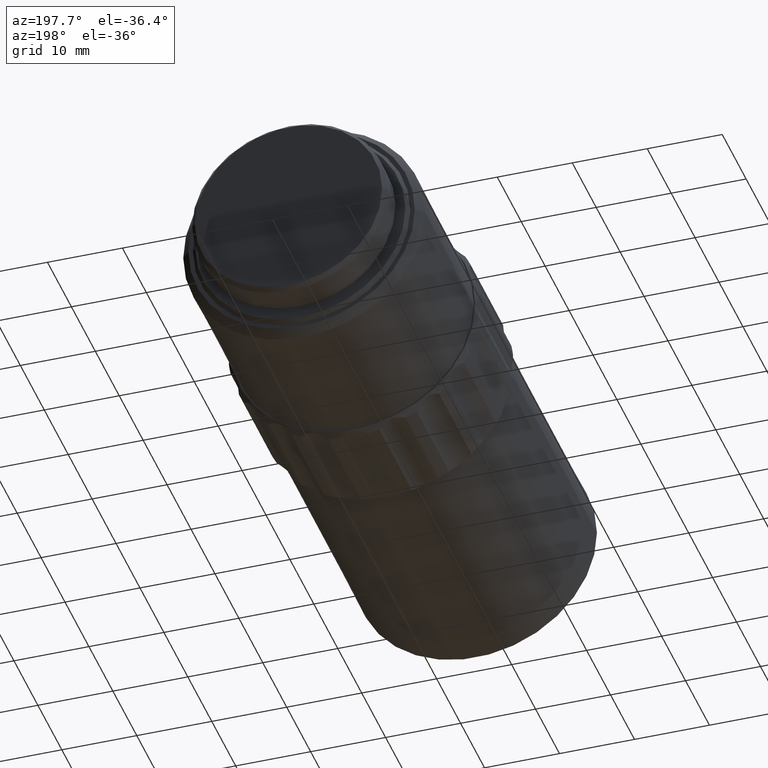
[diagram: clean part render]
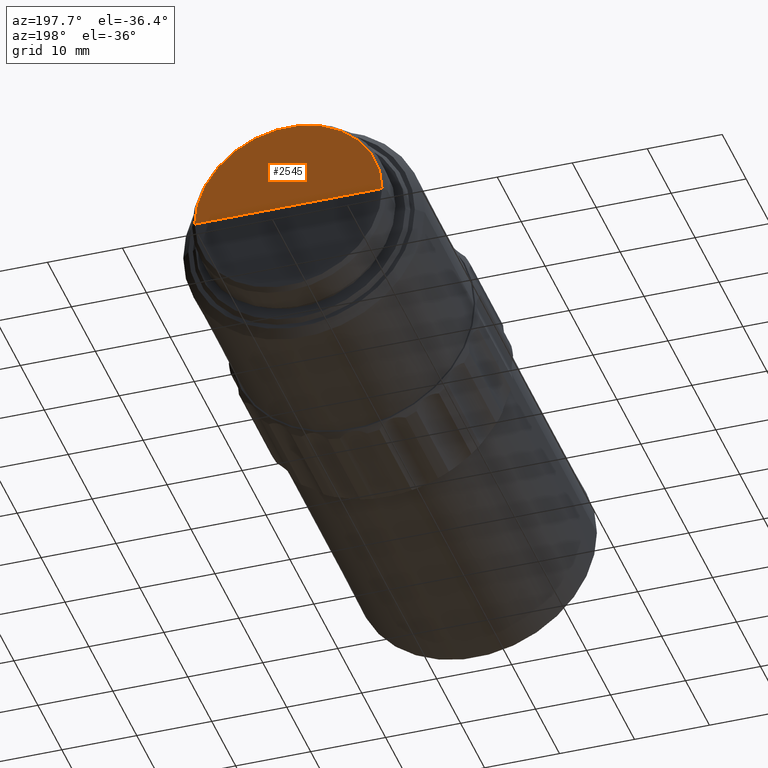
[diagram: same view with one face highlighted and labeled with its STEP entity id]
A machine part, auxiliary view. The second image highlights one B-rep face of the part: STEP entity #2545.
In plain terms, the highlighted conical surface has half-angle 89.999 deg.
Its self-contained STEP definition (entity closure, byte-faithful):
#121 = VECTOR ( 'NONE', #2155, 1000.000000000000114 ) ;
#197 = LINE ( 'NONE', #1986, #2025 ) ;
#366 = CARTESIAN_POINT ( 'NONE',  ( 1332.183016231088004, 1028.626203191520972, -1.347616800400172774E-09 ) ) ;
#428 = DIRECTION ( 'NONE',  ( 9.536353044915926586E-06, 0.9999999999545290397, -0.000000000000000000 ) ) ;
#647 = LINE ( 'NONE', #1276, #121 ) ;
#844 = FACE_OUTER_BOUND ( 'NONE', #2403, .T. ) ;
#858 = DIRECTION ( 'NONE',  ( -1.000000000000000000, -6.707255634415005413E-14, 1.224646799091667269E-16 ) ) ;
#886 = DIRECTION ( 'NONE',  ( -0.9999999999545289286, 9.536353041007332015E-06, 0.000000000000000000 ) ) ;
#912 = EDGE_CURVE ( 'NONE', #2409, #1953, #2767, .T. ) ;
#1085 = VERTEX_POINT ( 'NONE', #2235 ) ;
#1088 = DIRECTION ( 'NONE',  ( -9.536353044915926586E-06, -0.9999999999545290397, 0.000000000000000000 ) ) ;
#1110 = CARTESIAN_POINT ( 'NONE',  ( 1357.183016228813585, 1028.625964782695064, -1.347618331208670883E-09 ) ) ;
#1135 = ORIENTED_EDGE ( 'NONE', *, *, #1959, .T. ) ;
#1276 = CARTESIAN_POINT ( 'NONE',  ( 1357.183016223690402, 1028.625964782695064, -1.347618331208670883E-09 ) ) ;
#1292 = CARTESIAN_POINT ( 'NONE',  ( 1344.683016224827497, 1028.626083987107904, -1.347618331208670883E-09 ) ) ;
#1300 = AXIS2_PLACEMENT_3D ( 'NONE', #2580, #428, #886 ) ;
#1410 = EDGE_CURVE ( 'NONE', #1085, #1953, #647, .T. ) ;
#1456 = CONICAL_SURFACE ( 'NONE', #1879, 12.49999999943125317, 1.570786790441784486 ) ;
#1879 = AXIS2_PLACEMENT_3D ( 'NONE', #1292, #1088, #2585 ) ;
#1909 = ORIENTED_EDGE ( 'NONE', *, *, #1410, .F. ) ;
#1953 = VERTEX_POINT ( 'NONE', #1110 ) ;
#1959 = EDGE_CURVE ( 'NONE', #1085, #2409, #197, .T. ) ;
#1986 = CARTESIAN_POINT ( 'NONE',  ( 1332.183016225964593, 1028.626203191520972, -1.347616800400172153E-09 ) ) ;
#2025 = VECTOR ( 'NONE', #858, 1000.000000000000000 ) ;
#2105 = ORIENTED_EDGE ( 'NONE', *, *, #912, .T. ) ;
#2155 = DIRECTION ( 'NONE',  ( 0.9999999998181159366, -1.907270615603715450E-05, 0.000000000000000000 ) ) ;
#2235 = CARTESIAN_POINT ( 'NONE',  ( 1344.683016225964366, 1028.626203191521881, -1.347618331208670883E-09 ) ) ;
#2403 = EDGE_LOOP ( 'NONE', ( #1909, #1135, #2105 ) ) ;
#2409 = VERTEX_POINT ( 'NONE', #366 ) ;
#2545 = ADVANCED_FACE ( 'NONE', ( #844 ), #1456, .T. ) ;
#2580 = CARTESIAN_POINT ( 'NONE',  ( 1344.683016224827497, 1028.626083987107904, -1.347618331208670883E-09 ) ) ;
#2585 = DIRECTION ( 'NONE',  ( 0.9999999999545289286, -9.536353041007332015E-06, 0.000000000000000000 ) ) ;
#2767 = CIRCLE ( 'NONE', #1300, 12.49999999943125317 ) ;